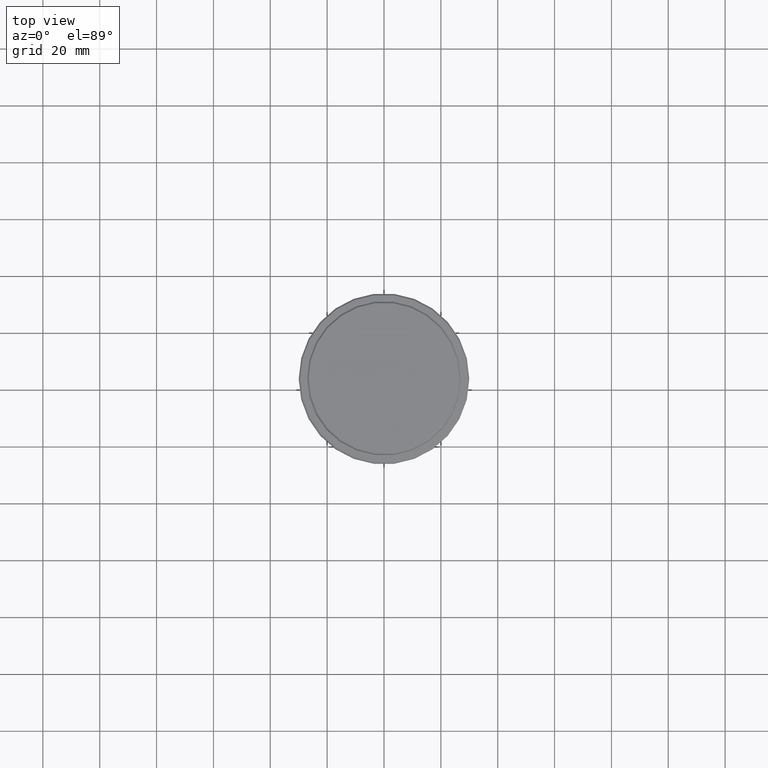
[diagram: clean part render]
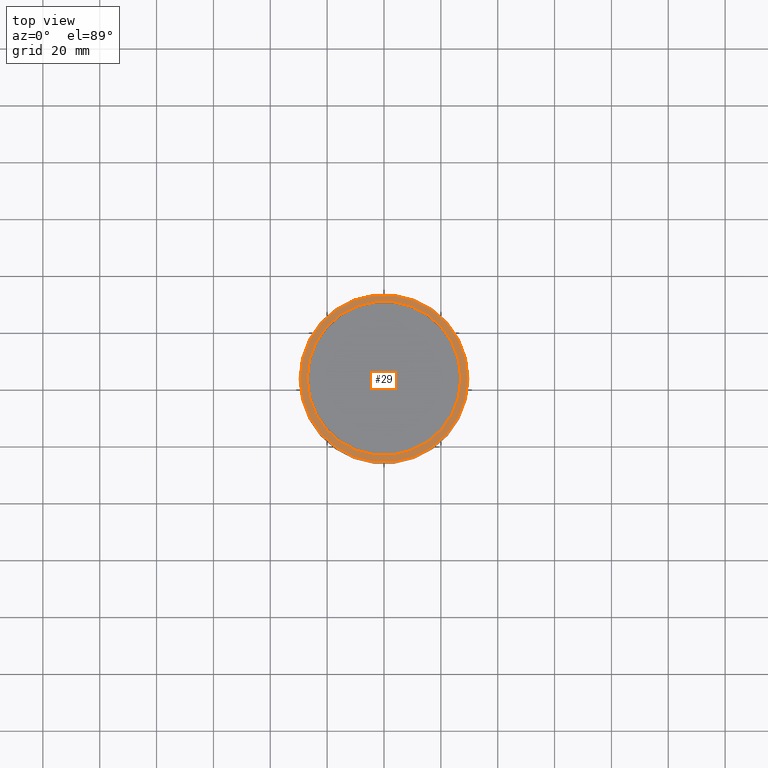
[diagram: same view with one face highlighted and labeled with its STEP entity id]
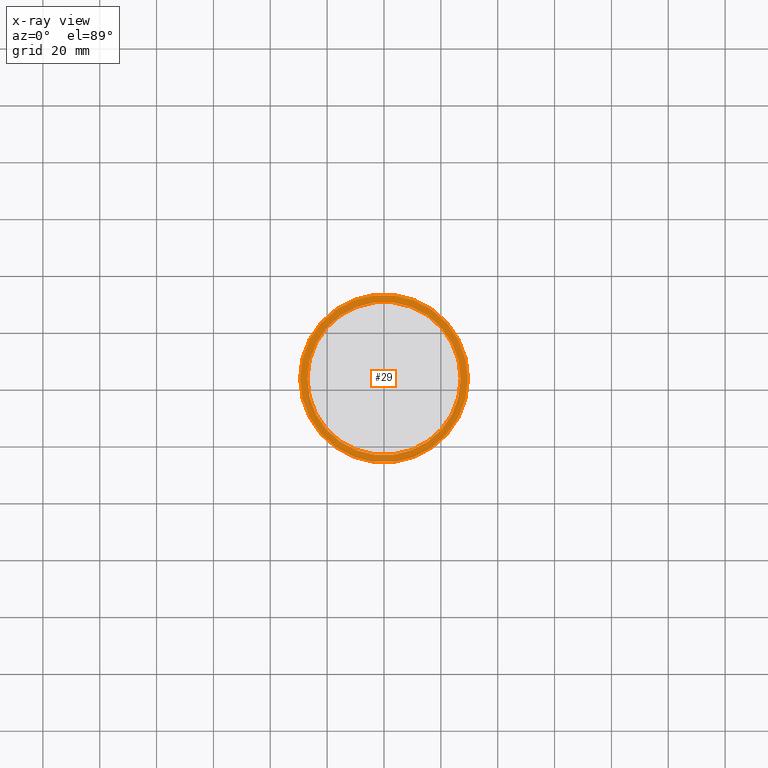
[diagram: x-ray of the same camera — body ghosted, the highlighted face saturated]
A machine part, top view. The second image highlights one B-rep face of the part: STEP entity #29.
The next image is the same camera in x-ray: the body ghosted, the highlighted face saturated — about 0% of this face is hidden behind the body in this view.
In plain terms, the highlighted planar face has unit normal (0, -0, 1).
Its self-contained STEP definition (entity closure, byte-faithful):
#3 = ORIENTED_EDGE ( 'NONE', *, *, #819, .T. ) ;
#19 = CARTESIAN_POINT ( 'NONE',  ( -29.49999999999997158, 0.000000000000000000, -12.00000000000000178 ) ) ;
#26 = EDGE_LOOP ( 'NONE', ( #557, #1076 ) ) ;
#29 = ADVANCED_FACE ( 'NONE', ( #1050, #77 ), #697, .T. ) ;
#37 = CIRCLE ( 'NONE', #1038, 26.99999999999999289 ) ;
#77 = FACE_BOUND ( 'NONE', #982, .T. ) ;
#121 = ORIENTED_EDGE ( 'NONE', *, *, #1351, .T. ) ;
#126 = CARTESIAN_POINT ( 'NONE',  ( -26.99999999999999289, 3.306546357697852944E-15, -12.00000000000000178 ) ) ;
#154 = CARTESIAN_POINT ( 'NONE',  ( 0.000000000000000000, 0.000000000000000000, -12.00000000000000178 ) ) ;
#183 = DIRECTION ( 'NONE',  ( 0.000000000000000000, 0.000000000000000000, -1.000000000000000000 ) ) ;
#199 = CIRCLE ( 'NONE', #997, 26.99999999999999289 ) ;
#217 = AXIS2_PLACEMENT_3D ( 'NONE', #519, #491, #1140 ) ;
#295 = VERTEX_POINT ( 'NONE', #1277 ) ;
#302 = EDGE_CURVE ( 'NONE', #295, #317, #562, .T. ) ;
#304 = DIRECTION ( 'NONE',  ( 1.000000000000000000, 0.000000000000000000, 0.000000000000000000 ) ) ;
#317 = VERTEX_POINT ( 'NONE', #19 ) ;
#322 = DIRECTION ( 'NONE',  ( 0.000000000000000000, 0.000000000000000000, -1.000000000000000000 ) ) ;
#355 = DIRECTION ( 'NONE',  ( -0.000000000000000000, -0.000000000000000000, 1.000000000000000000 ) ) ;
#491 = DIRECTION ( 'NONE',  ( 0.000000000000000000, -0.000000000000000000, 1.000000000000000000 ) ) ;
#519 = CARTESIAN_POINT ( 'NONE',  ( 0.000000000000000000, 26.49999999999999645, -12.00000000000000178 ) ) ;
#534 = CARTESIAN_POINT ( 'NONE',  ( 0.000000000000000000, 0.000000000000000000, -12.00000000000000178 ) ) ;
#557 = ORIENTED_EDGE ( 'NONE', *, *, #653, .T. ) ;
#560 = CARTESIAN_POINT ( 'NONE',  ( 0.000000000000000000, 0.000000000000000000, -12.00000000000000178 ) ) ;
#562 = CIRCLE ( 'NONE', #1018, 29.49999999999997158 ) ;
#603 = CARTESIAN_POINT ( 'NONE',  ( 0.000000000000000000, 0.000000000000000000, -12.00000000000000178 ) ) ;
#653 = EDGE_CURVE ( 'NONE', #317, #295, #897, .T. ) ;
#687 = DIRECTION ( 'NONE',  ( 1.000000000000000000, 0.000000000000000000, 0.000000000000000000 ) ) ;
#697 = PLANE ( 'NONE',  #217 ) ;
#756 = CARTESIAN_POINT ( 'NONE',  ( 26.99999999999999289, 0.000000000000000000, -12.00000000000000178 ) ) ;
#819 = EDGE_CURVE ( 'NONE', #1414, #1164, #37, .T. ) ;
#897 = CIRCLE ( 'NONE', #1037, 29.49999999999997158 ) ;
#907 = DIRECTION ( 'NONE',  ( 1.000000000000000000, 0.000000000000000000, 0.000000000000000000 ) ) ;
#982 = EDGE_LOOP ( 'NONE', ( #3, #121 ) ) ;
#997 = AXIS2_PLACEMENT_3D ( 'NONE', #603, #183, #907 ) ;
#1018 = AXIS2_PLACEMENT_3D ( 'NONE', #560, #355, #1111 ) ;
#1037 = AXIS2_PLACEMENT_3D ( 'NONE', #154, #1260, #304 ) ;
#1038 = AXIS2_PLACEMENT_3D ( 'NONE', #534, #322, #687 ) ;
#1050 = FACE_OUTER_BOUND ( 'NONE', #26, .T. ) ;
#1076 = ORIENTED_EDGE ( 'NONE', *, *, #302, .T. ) ;
#1111 = DIRECTION ( 'NONE',  ( 1.000000000000000000, 0.000000000000000000, 0.000000000000000000 ) ) ;
#1140 = DIRECTION ( 'NONE',  ( 1.000000000000000000, 0.000000000000000000, 0.000000000000000000 ) ) ;
#1164 = VERTEX_POINT ( 'NONE', #126 ) ;
#1260 = DIRECTION ( 'NONE',  ( -0.000000000000000000, -0.000000000000000000, 1.000000000000000000 ) ) ;
#1277 = CARTESIAN_POINT ( 'NONE',  ( 29.49999999999997158, 3.643324227463373813E-15, -12.00000000000000178 ) ) ;
#1351 = EDGE_CURVE ( 'NONE', #1164, #1414, #199, .T. ) ;
#1414 = VERTEX_POINT ( 'NONE', #756 ) ;